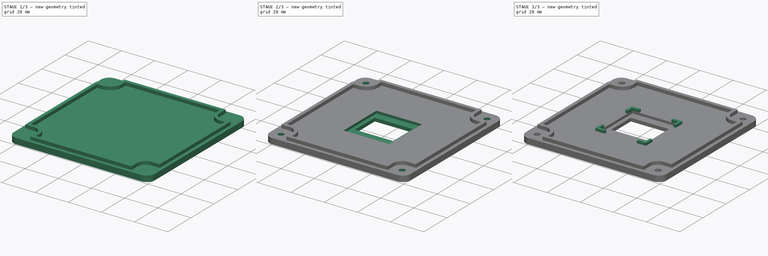
[diagram: build sequence overview — one tinted view per stage of 3, left to right]
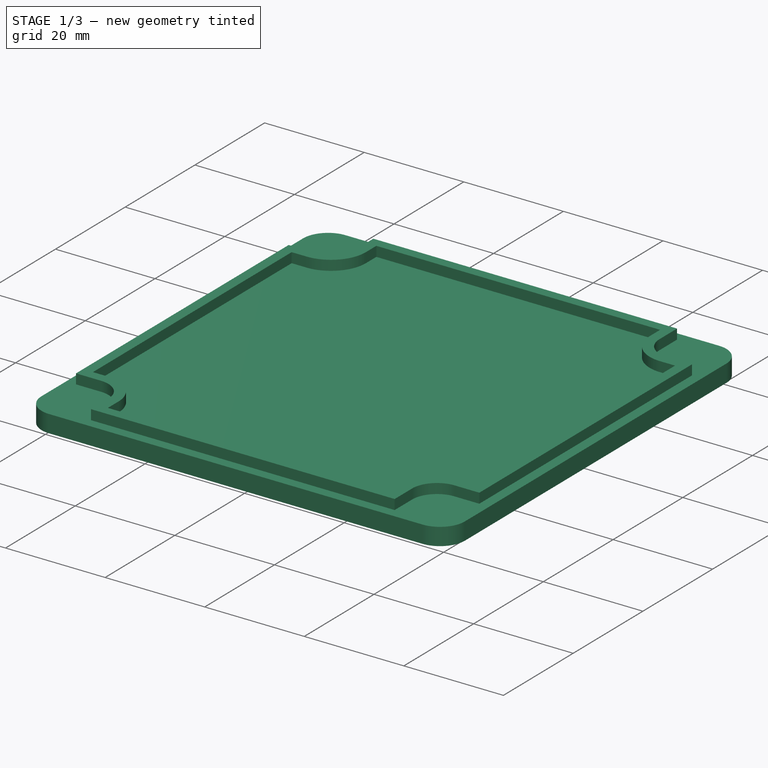
[diagram: stage 1 of 3 — iso view after this stage's code; geometry added in this stage tinted green]
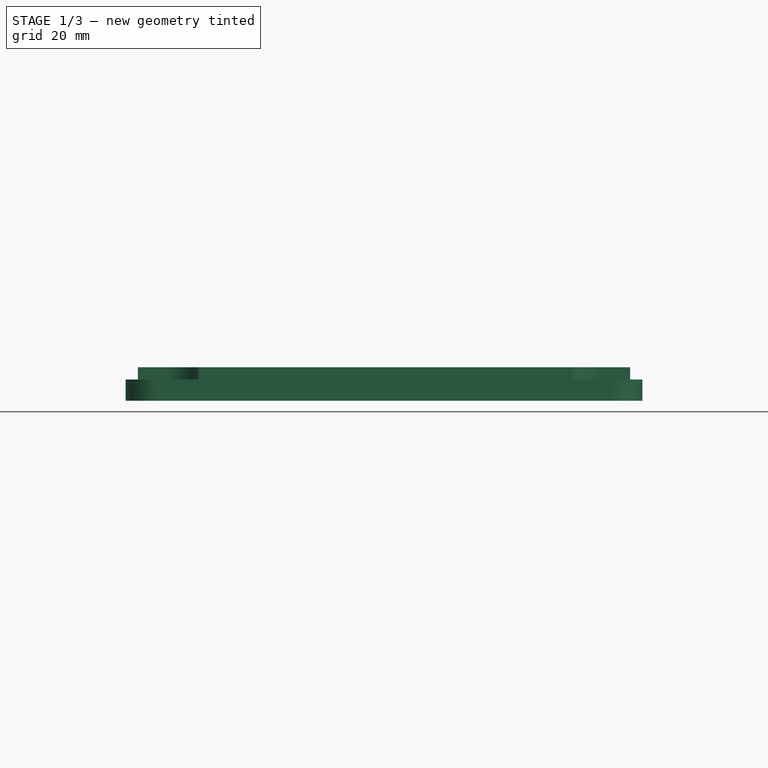
[diagram: stage 1 of 3 — front view after this stage's code; geometry added in this stage tinted green]
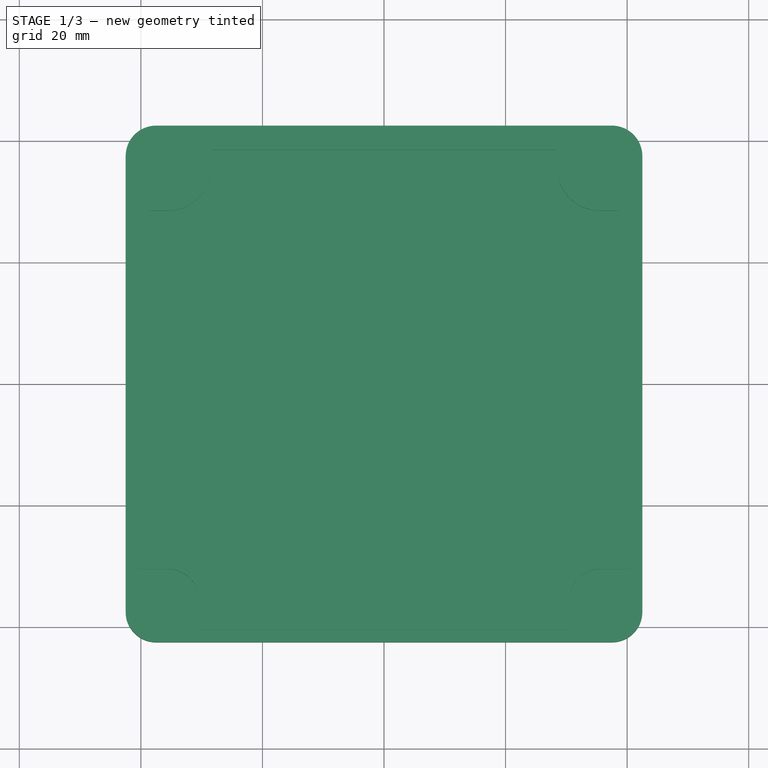
[diagram: stage 1 of 3 — top view after this stage's code; geometry added in this stage tinted green]
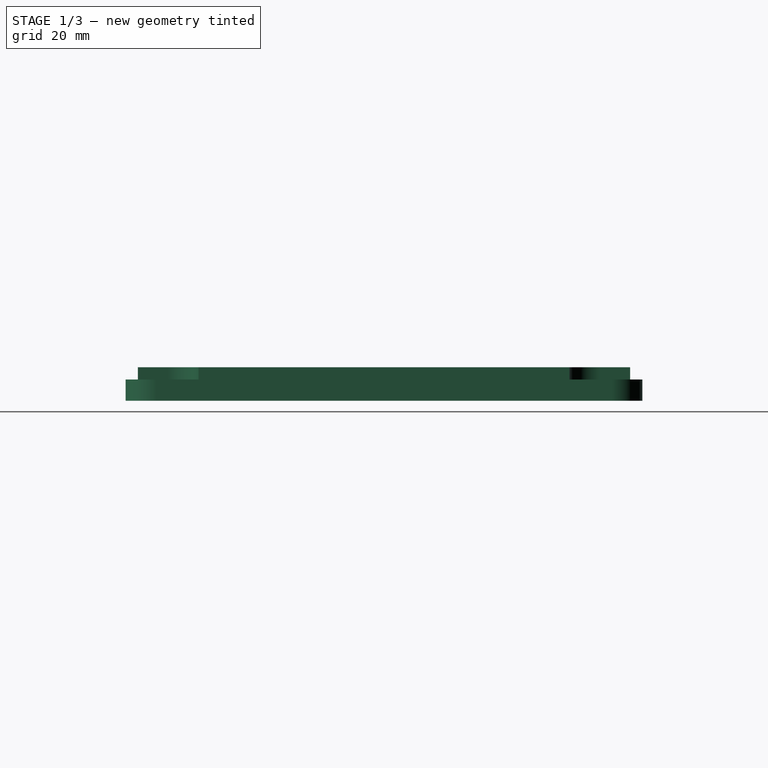
[diagram: stage 1 of 3 — right view after this stage's code; geometry added in this stage tinted green]
FCSTD DOCUMENT  (FreeCAD 0.18.4R)
Label: bodylid
License: All rights reserved
LicenseURL: http://en.wikipedia.org/wiki/All_rights_reserved
objects: Sketcher::SketchObject×7, PartDesign::Pocket×4, PartDesign::Pad×3, PartDesign::Body×1
note: 22 computed .brp shape members not serialized (recipe doc carries the construction recipe); baked Part::Feature solids carry a one-line shape summary decoded from their .brp

FEATURE [Sketcher::SketchObject] Sketch
  MapMode = 5
  Support = -> [XY_Plane]
  sketch-geometry (8):
    g0: LineSegment StartX=-37.5 StartY=42.5 StartZ=0 EndX=37.5 EndY=42.5 EndZ=0
    g1: LineSegment StartX=42.5 StartY=37.5 StartZ=0 EndX=42.5 EndY=-37.5 EndZ=0
    g2: LineSegment StartX=37.5 StartY=-42.5 StartZ=0 EndX=-37.5 EndY=-42.5 EndZ=0
    g3: LineSegment StartX=-42.5 StartY=-37.5 StartZ=0 EndX=-42.5 EndY=37.5 EndZ=0
    g4: ArcOfCircle CenterX=37.5 CenterY=-37.5 CenterZ=0 NormalX=0 NormalY=0 NormalZ=1 AngleXU=0 Radius=5 StartAngle=4.71239 EndAngle=6.28319
    g5: ArcOfCircle CenterX=-37.5 CenterY=-37.5 CenterZ=0 NormalX=0 NormalY=0 NormalZ=1 AngleXU=0 Radius=5 StartAngle=3.14159 EndAngle=4.71239
    g6: ArcOfCircle CenterX=-37.5 CenterY=37.5 CenterZ=0 NormalX=0 NormalY=0 NormalZ=1 AngleXU=0 Radius=5 StartAngle=1.5708 EndAngle=3.14159
    g7: ArcOfCircle CenterX=37.5 CenterY=37.5 CenterZ=0 NormalX=0 NormalY=0 NormalZ=1 AngleXU=0 Radius=5 StartAngle=-8e-15 EndAngle=1.5708
  constraints (19):
    c: Horizontal(g0)
    c: Horizontal(g2)
    c: Vertical(g1)
    c: Vertical(g3)
    c: Tangent(g1,g4) = 1.5708
    c: Tangent(g2,g4) = 1.5708
    c: Tangent(g3,g5) = 1.5708
    c: Tangent(g2,g5) = 1.5708
    c: Tangent(g3,g6) = 1.5708
    c: Tangent(g0,g6) = 1.5708
    c: Tangent(g0,g7) = 1.5708
    c: Tangent(g1,g7) = 1.5708
    c: Equal(g5,g4)
    c: Equal(g4,g7)
    c: Equal(g7,g6)
    c: Symmetric(g6,g4,g-1)
    c: Radius(g4) = 5
    c: DistanceX(g3,g1) = 85
    c: Equal(g0,g1)
FEATURE [PartDesign::Pad] Pad
  Length = 3.5
  Length2 = 100
  Profile = -> Sketch
  Type = 0
FEATURE [Sketcher::SketchObject] Sketch001
  ExternalGeometry = -> [Pad]
  MapMode = 5
  Placement = pos=(0,0,3.5) rot=(0,0,1;0rad)
  Support = -> [Pad]
  sketch-geometry (32):
    g0: LineSegment StartX=-30.5 StartY=40.5 StartZ=0 EndX=30.5 EndY=40.5 EndZ=0
    g1: LineSegment StartX=30.5 StartY=40.5 StartZ=0 EndX=30.5 EndY=35.5 EndZ=0
    g2: LineSegment StartX=35.5 StartY=30.5 StartZ=0 EndX=40.5 EndY=30.5 EndZ=0
    g3: LineSegment StartX=40.5 StartY=30.5 StartZ=0 EndX=40.5 EndY=-30.5 EndZ=0
    g4: LineSegment StartX=40.5 StartY=-30.5 StartZ=0 EndX=35.5 EndY=-30.5 EndZ=0
    g5: LineSegment StartX=30.5 StartY=-35.5 StartZ=0 EndX=30.5 EndY=-40.5 EndZ=0
    g6: LineSegment StartX=30.5 StartY=-40.5 StartZ=0 EndX=-30.5 EndY=-40.5 EndZ=0
    g7: LineSegment StartX=-30.5 StartY=-40.5 StartZ=0 EndX=-30.5 EndY=-35.5 EndZ=0
    g8: LineSegment StartX=-35.5 StartY=-30.5 StartZ=0 EndX=-40.5 EndY=-30.5 EndZ=0
    g9: LineSegment StartX=-40.5 StartY=-30.5 StartZ=0 EndX=-40.5 EndY=30.5 EndZ=0
    g10: LineSegment StartX=-40.5 StartY=30.5 StartZ=0 EndX=-35.5 EndY=30.5 EndZ=0
    g11: LineSegment StartX=-30.5 StartY=35.5 StartZ=0 EndX=-30.5 EndY=40.5 EndZ=0
    g12: ArcOfCircle CenterX=35.5 CenterY=-35.5 CenterZ=0 NormalX=0 NormalY=0 NormalZ=1 AngleXU=0 Radius=5 StartAngle=1.5708 EndAngle=3.14159
    g13: ArcOfCircle CenterX=35.5 CenterY=35.5 CenterZ=0 NormalX=0 NormalY=0 NormalZ=1 AngleXU=0 Radius=5 StartAngle=3.14159 EndAngle=4.71239
    g14: ArcOfCircle CenterX=-35.5 CenterY=35.5 CenterZ=0 NormalX=0 NormalY=0 NormalZ=1 AngleXU=0 Radius=5 StartAngle=4.71239 EndAngle=6.28319
    g15: ArcOfCircle CenterX=-35.5 CenterY=-35.5 CenterZ=0 NormalX=0 NormalY=0 NormalZ=1 AngleXU=0 Radius=5 StartAngle=0 EndAngle=1.5708
    g16: LineSegment StartX=-28.5 StartY=38.5 StartZ=0 EndX=28.5 EndY=38.5 EndZ=0
    g17: LineSegment StartX=28.5 StartY=38.5 StartZ=0 EndX=28.5 EndY=35.5 EndZ=0
    g18: LineSegment StartX=35.5 StartY=28.5 StartZ=0 EndX=38.5 EndY=28.5 EndZ=0
    g19: LineSegment StartX=38.5 StartY=28.5 StartZ=0 EndX=38.5 EndY=-28.5 EndZ=0
    g20: LineSegment StartX=38.5 StartY=-28.5 StartZ=0 EndX=35.5 EndY=-28.5 EndZ=0
    g21: LineSegment StartX=28.5 StartY=-35.5 StartZ=0 EndX=28.5 EndY=-38.5 EndZ=0
    g22: LineSegment StartX=28.5 StartY=-38.5 StartZ=0 EndX=-28.5 EndY=-38.5 EndZ=0
    g23: LineSegment StartX=-28.5 StartY=-38.5 StartZ=0 EndX=-28.5 EndY=-35.5 EndZ=0
    g24: LineSegment StartX=-35.5 StartY=-28.5 StartZ=0 EndX=-38.5 EndY=-28.5 EndZ=0
    g25: LineSegment StartX=-38.5 StartY=-28.5 StartZ=0 EndX=-38.5 EndY=28.5 EndZ=0
    g26: LineSegment StartX=-38.5 StartY=28.5 StartZ=0 EndX=-35.5 EndY=28.5 EndZ=0
    g27: LineSegment StartX=-28.5 StartY=35.5 StartZ=0 EndX=-28.5 EndY=38.5 EndZ=0
    g28: ArcOfCircle CenterX=-35.5 CenterY=35.5 CenterZ=0 NormalX=0 NormalY=0 NormalZ=1 AngleXU=0 Radius=7 StartAngle=4.71239 EndAngle=6.28319
    g29: ArcOfCircle CenterX=35.5 CenterY=35.5 CenterZ=0 NormalX=0 NormalY=0 NormalZ=1 AngleXU=0 Radius=7 StartAngle=3.14159 EndAngle=4.71239
    g30: ArcOfCircle CenterX=35.5 CenterY=-35.5 CenterZ=0 NormalX=0 NormalY=0 NormalZ=1 AngleXU=0 Radius=7 StartAngle=1.5708 EndAngle=3.14159
    g31: ArcOfCircle CenterX=-35.5 CenterY=-35.5 CenterZ=0 NormalX=0 NormalY=0 NormalZ=1 AngleXU=0 Radius=7 StartAngle=3e-16 EndAngle=1.5708
  constraints (88):
    c: Horizontal(g0)
    c: Coincident(g0,g1)
    c: Coincident(g2,g3)
    c: Vertical(g3)
    c: Coincident(g3,g4)
    c: Coincident(g5,g6)
    c: Coincident(g6,g7)
    c: Vertical(g7)
    c: Coincident(g8,g9)
    c: Vertical(g9)
    c: Coincident(g9,g10)
    c: Coincident(g11,g0)
    c: Vertical(g11)
    c: Equal(g0,g9)
    c: Equal(g9,g6)
    c: Equal(g6,g3)
    c: Tangent(g5,g12) = -1.5708
    c: Tangent(g4,g12) = -1.5708
    c: Tangent(g2,g13) = -1.5708
    c: Tangent(g1,g13) = -1.5708
    c: Tangent(g10,g14) = -1.5708
    c: Tangent(g11,g14) = -1.5708
    c: Horizontal(g10)
    c: Vertical(g1)
    c: Horizontal(g2)
    c: Tangent(g7,g15) = -1.5708
    c: Tangent(g8,g15) = -1.5708
    c: Horizontal(g8)
    c: Vertical(g5)
    c: Horizontal(g4)
    c: Horizontal(g6)
    c: Equal(g8,g7)
    c: Equal(g7,g5)
    c: Equal(g5,g4)
    c: Equal(g4,g2)
    c: Equal(g2,g1)
    c: Equal(g1,g11)
    c: Equal(g11,g10)
    c: Radius(g14) = 5
    c: DistanceY(g0,g-3) = 2
    c: Equal(g14,g15)
    c: DistanceX(g-4,g9) = 2
    c: DistanceX(g2,g-5) = 2
    c: DistanceX(g2,g2) = 5
    c: Horizontal(g16)
    c: Coincident(g16,g17)
    c: Coincident(g18,g19)
    c: Vertical(g19)
    c: Coincident(g19,g20)
    c: Coincident(g21,g22)
    c: Coincident(g22,g23)
    c: Coincident(g24,g25)
    c: Coincident(g25,g26)
    c: Coincident(g27,g16)
    c: Tangent(g26,g28) = -1.5708
    c: Tangent(g27,g28) = -1.5708
    c: Tangent(g17,g29) = -1.5708
    c: Tangent(g18,g29) = -1.5708
    c: Tangent(g20,g30) = -1.5708
    c: Tangent(g21,g30) = -1.5708
    c: Tangent(g24,g31) = -1.5708
    c: Tangent(g23,g31) = -1.5708
    c: Vertical(g27)
    c: Horizontal(g26)
    c: Vertical(g25)
    c: Horizontal(g22)
    c: Vertical(g23)
    c: Horizontal(g24)
    c: Horizontal(g20)
    c: Vertical(g21)
    c: Horizontal(g18)
    c: Vertical(g17)
    c: Equal(g29,g30)
    c: Equal(g30,g31)
    c: Equal(g31,g28)
    c: DistanceY(g16,g0) = 2
    c: DistanceX(g18,g2) = 2
    c: Vertical(g18,g2)
    c: Horizontal(g17,g1)
    c: DistanceX(g17,g1) = 2
    c: Equal(g27,g23)
    c: Equal(g23,g20)
    c: Equal(g20,g18)
    c: Equal(g26,g24)
    c: Equal(g24,g21)
    c: Equal(g21,g20)
    c: DistanceX(g9,g25) = 2
    c: DistanceY(g4,g20) = 2
FEATURE [PartDesign::Pad] Pad001
  BaseFeature = -> Pad
  Length = 2
  Length2 = 100
  Profile = -> Sketch001
  Type = 0
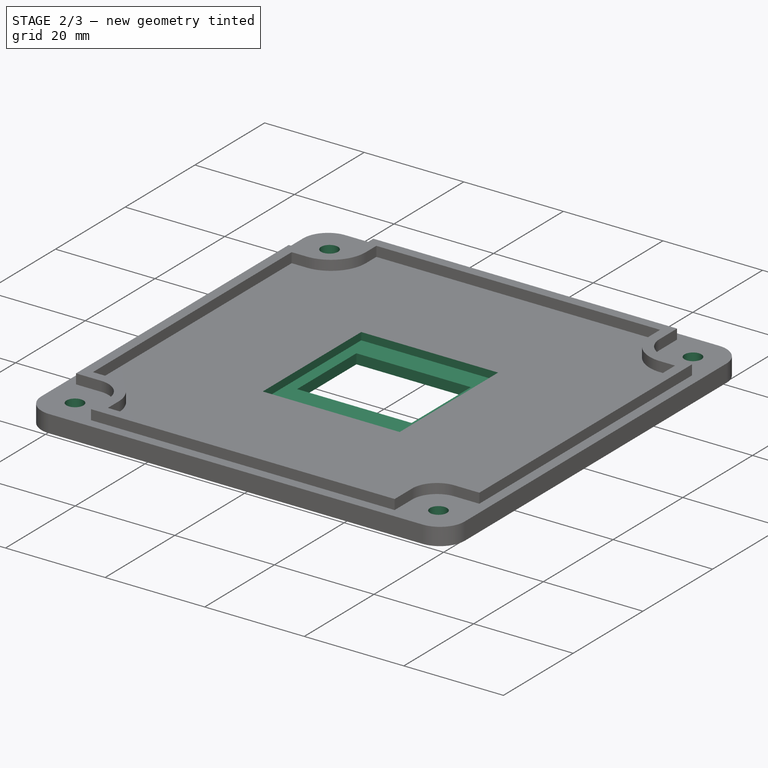
[diagram: stage 2 of 3 — iso view after this stage's code; geometry added in this stage tinted green]
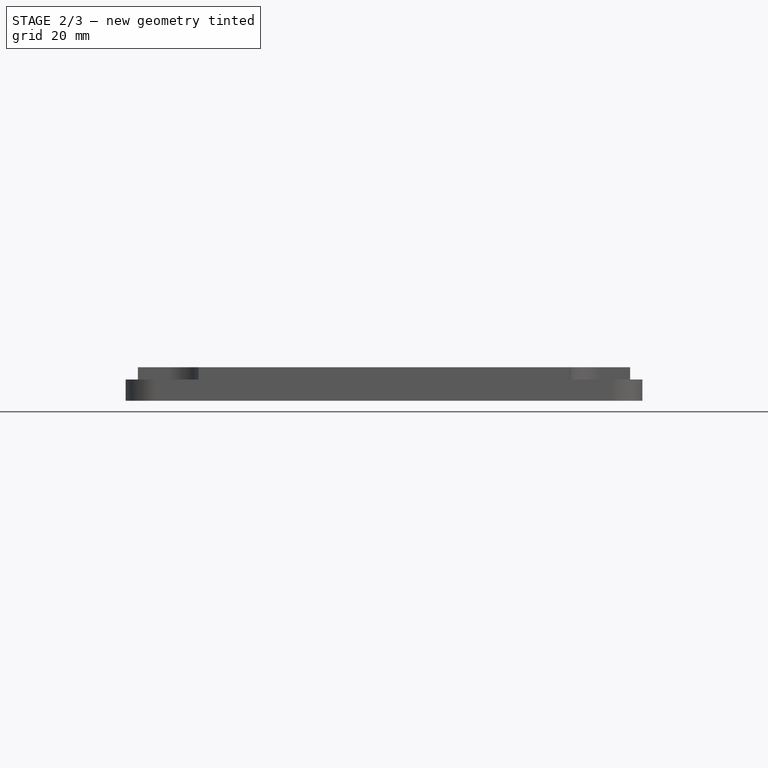
[diagram: stage 2 of 3 — front view after this stage's code; geometry added in this stage tinted green]
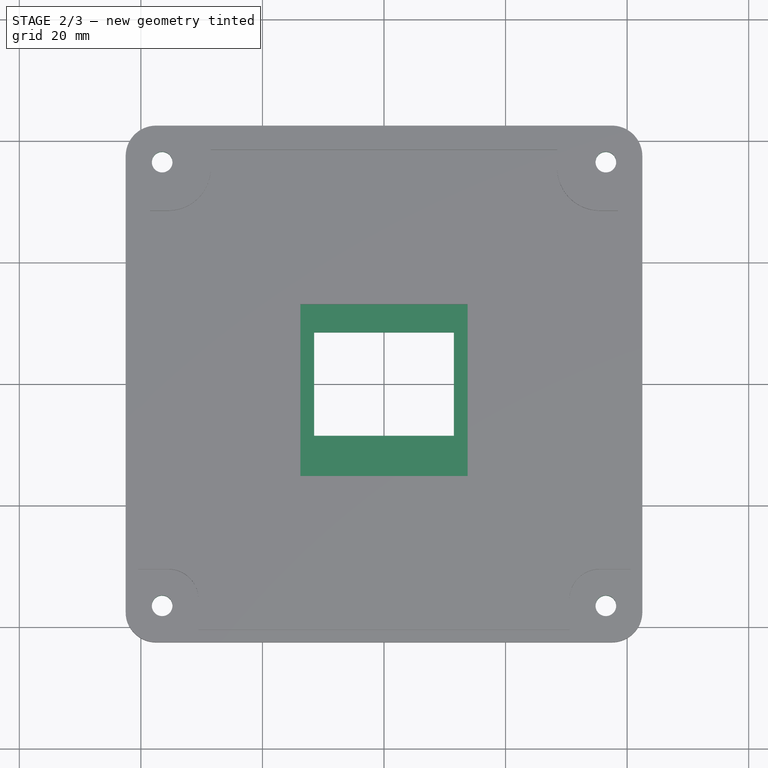
[diagram: stage 2 of 3 — top view after this stage's code; geometry added in this stage tinted green]
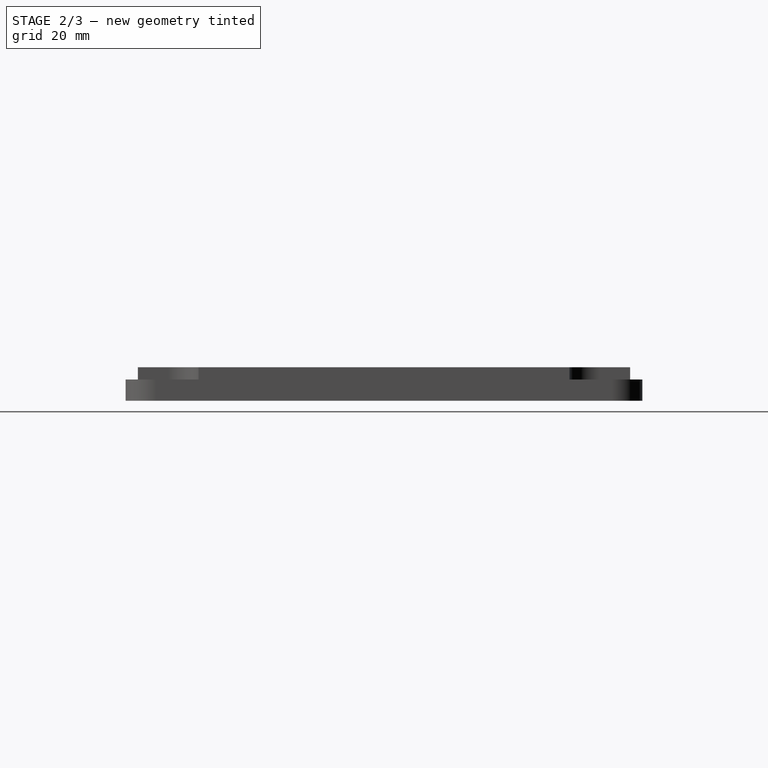
[diagram: stage 2 of 3 — right view after this stage's code; geometry added in this stage tinted green]
FEATURE [Sketcher::SketchObject] Sketch002
  ExternalGeometry = -> [Pad001]
  MapMode = 5
  Placement = pos=(0,0,3.5) rot=(0,0,1;0rad)
  Support = -> [Pad001]
  sketch-geometry (4):
    g0: Circle CenterX=-36.5 CenterY=36.5 CenterZ=0 NormalX=0 NormalY=0 NormalZ=1 AngleXU=0 Radius=1.7
    g1: Circle CenterX=36.5 CenterY=36.5 CenterZ=0 NormalX=0 NormalY=0 NormalZ=1 AngleXU=0 Radius=1.7
    g2: Circle CenterX=-36.5 CenterY=-36.5 CenterZ=0 NormalX=0 NormalY=0 NormalZ=1 AngleXU=0 Radius=1.7
    g3: Circle CenterX=36.5 CenterY=-36.5 CenterZ=0 NormalX=0 NormalY=0 NormalZ=1 AngleXU=0 Radius=1.7
  constraints (9):
    c: Equal(g3,g2)
    c: Equal(g2,g1)
    c: Equal(g1,g0)
    c: Vertical(g2,g0)
    c: Horizontal(g3,g2)
    c: Symmetric(g1,g3,g-1)
    c: Symmetric(g0,g1,g-2)
    c: Symmetric(g-4,g-3,g0)
    c: Radius(g0) = 1.7
FEATURE [PartDesign::Pocket] Pocket
  BaseFeature = -> Pad001
  Length = 5
  Length2 = 100
  Profile = -> Sketch002
  Type = 0
FEATURE [Sketcher::SketchObject] Sketch003
  MapMode = 5
  Placement = pos=(0,0,3.5) rot=(0,0,1;0rad)
  Support = -> [Pocket]
  sketch-geometry (4):
    g0: LineSegment StartX=11.5 StartY=8.5 StartZ=0 EndX=-11.5 EndY=8.5 EndZ=0
    g1: LineSegment StartX=-11.5 StartY=8.5 StartZ=0 EndX=-11.5 EndY=-8.5 EndZ=0
    g2: LineSegment StartX=-11.5 StartY=-8.5 StartZ=0 EndX=11.5 EndY=-8.5 EndZ=0
    g3: LineSegment StartX=11.5 StartY=-8.5 StartZ=0 EndX=11.5 EndY=8.5 EndZ=0
  constraints (11):
    c: Coincident(g0,g1)
    c: Coincident(g1,g2)
    c: Coincident(g2,g3)
    c: Coincident(g3,g0)
    c: Horizontal(g0)
    c: Horizontal(g2)
    c: Vertical(g1)
    c: Vertical(g3)
    c: Symmetric(g0,g1,g-1)
    c: DistanceX(g0,g0) = 23
    c: DistanceY(g3,g3) = 17
FEATURE [PartDesign::Pocket] Pocket001
  BaseFeature = -> Pocket
  Length = 5
  Length2 = 100
  Profile = -> Sketch003
  Type = 0
FEATURE [Sketcher::SketchObject] Sketch004
  ExternalGeometry = -> [Pocket001]
  MapMode = 5
  Placement = pos=(0,0,3.5) rot=(0,0,1;0rad)
  Support = -> [Pocket001]
  sketch-geometry (4):
    g0: LineSegment StartX=-13.75 StartY=13.1 StartZ=0 EndX=13.75 EndY=13.1 EndZ=0
    g1: LineSegment StartX=13.75 StartY=13.1 StartZ=0 EndX=13.75 EndY=-15.1448 EndZ=0
    g2: LineSegment StartX=13.75 StartY=-15.1448 StartZ=0 EndX=-13.75 EndY=-15.1448 EndZ=0
    g3: LineSegment StartX=-13.75 StartY=-15.1448 StartZ=0 EndX=-13.75 EndY=13.1 EndZ=0
  constraints (11):
    c: Coincident(g0,g1)
    c: Coincident(g1,g2)
    c: Coincident(g2,g3)
    c: Coincident(g3,g0)
    c: Horizontal(g2)
    c: Vertical(g1)
    c: Vertical(g3)
    c: DistanceX(g0,g0) = 27.5
    c: Symmetric(g0,g0,g-2)
    c: DistanceY(g-3,g0) = 4.6
    c: DistanceY(g1,g1) = 28.2448
FEATURE [PartDesign::Pocket] Pocket002
  BaseFeature = -> Pocket001
  Length = 1.5
  Length2 = 100
  Profile = -> Sketch004
  Type = 0
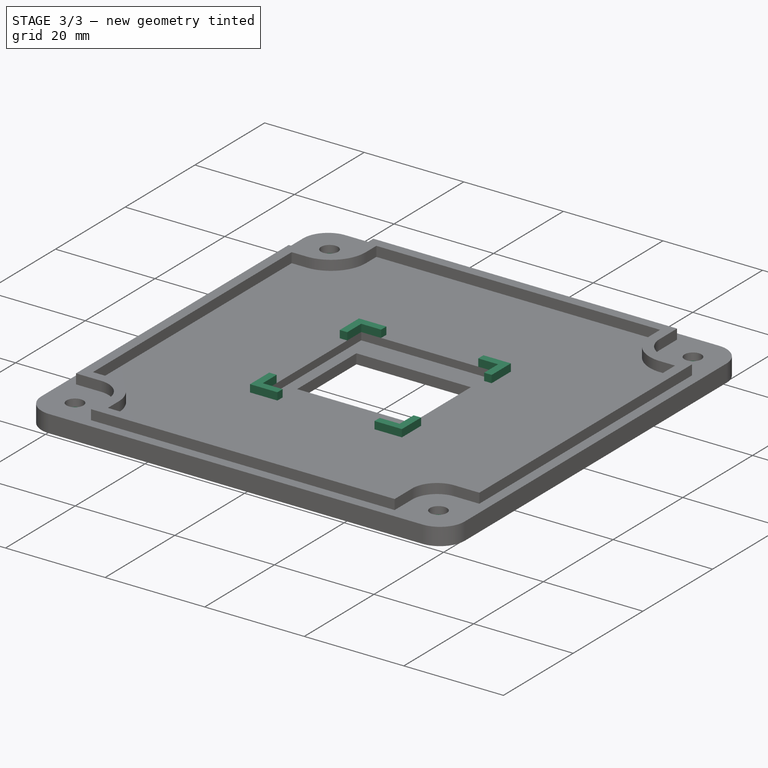
[diagram: stage 3 of 3 — iso view after this stage's code; geometry added in this stage tinted green]
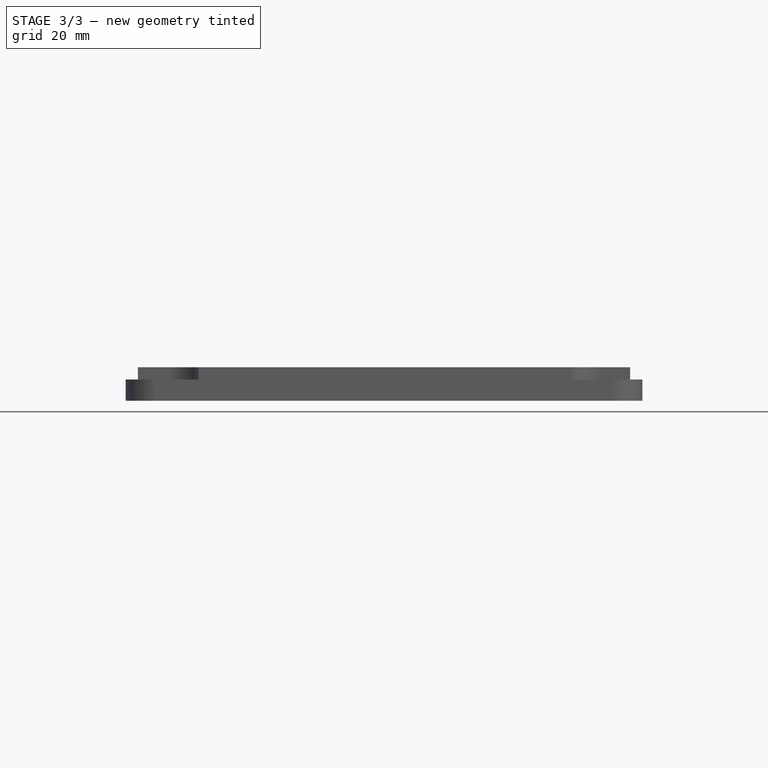
[diagram: stage 3 of 3 — front view after this stage's code; geometry added in this stage tinted green]
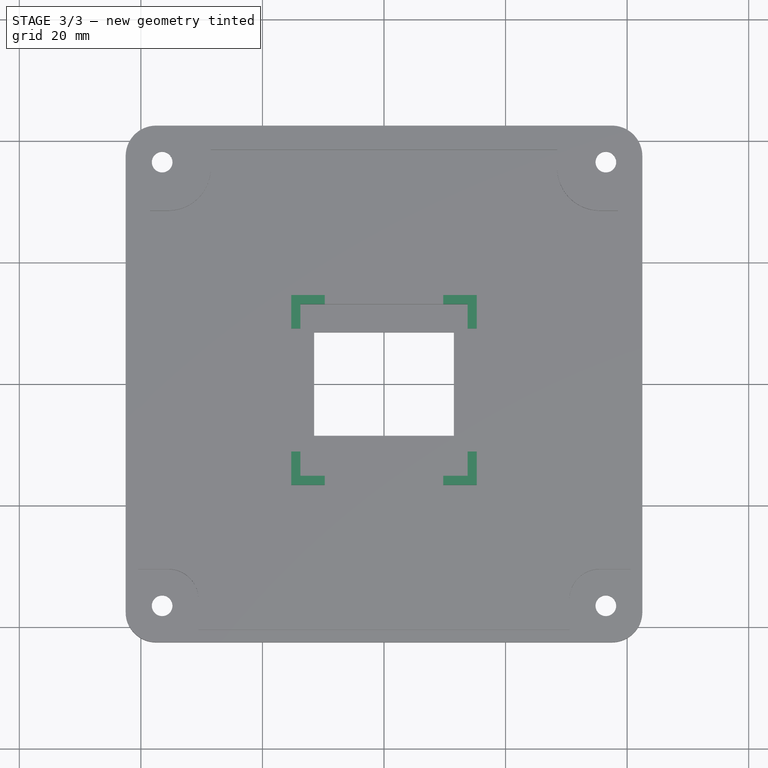
[diagram: stage 3 of 3 — top view after this stage's code; geometry added in this stage tinted green]
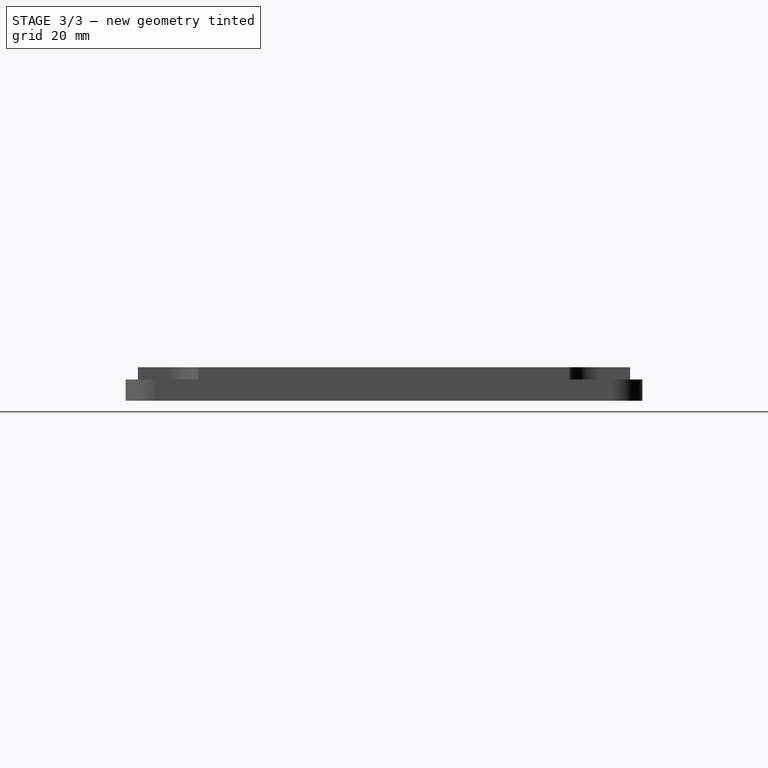
[diagram: stage 3 of 3 — right view after this stage's code; geometry added in this stage tinted green]
FEATURE [Sketcher::SketchObject] Sketch005
  ExternalGeometry = -> [Pocket002]
  MapMode = 5
  Placement = pos=(0,0,3.5) rot=(0,0,1;0rad)
  Support = -> [Pocket002]
  sketch-geometry (24):
    g0: LineSegment StartX=-15.25 StartY=14.6 StartZ=0 EndX=-15.25 EndY=9.1 EndZ=0
    g1: LineSegment StartX=-15.25 StartY=9.1 StartZ=0 EndX=-13.75 EndY=9.1 EndZ=0
    g2: LineSegment StartX=-13.75 StartY=9.1 StartZ=0 EndX=-13.75 EndY=13.1 EndZ=0
    g3: LineSegment StartX=-13.75 StartY=13.1 StartZ=0 EndX=-9.75 EndY=13.1 EndZ=0
    g4: LineSegment StartX=-9.75 StartY=13.1 StartZ=0 EndX=-9.75 EndY=14.6 EndZ=0
    g5: LineSegment StartX=-9.75 StartY=14.6 StartZ=0 EndX=-15.25 EndY=14.6 EndZ=0
    g6: LineSegment StartX=9.75 StartY=13.1 StartZ=0 EndX=13.75 EndY=13.1 EndZ=0
    g7: LineSegment StartX=13.75 StartY=13.1 StartZ=0 EndX=13.75 EndY=9.1 EndZ=0
    g8: LineSegment StartX=13.75 StartY=9.1 StartZ=0 EndX=15.25 EndY=9.1 EndZ=0
    g9: LineSegment StartX=15.25 StartY=9.1 StartZ=0 EndX=15.25 EndY=14.6 EndZ=0
    g10: LineSegment StartX=15.25 StartY=14.6 StartZ=0 EndX=9.75 EndY=14.6 EndZ=0
    g11: LineSegment StartX=9.75 StartY=14.6 StartZ=0 EndX=9.75 EndY=13.1 EndZ=0
    g12: LineSegment StartX=9.75 StartY=-15.1448 StartZ=0 EndX=13.75 EndY=-15.1448 EndZ=0
    g13: LineSegment StartX=13.75 StartY=-15.1448 StartZ=0 EndX=13.75 EndY=-11.1448 EndZ=0
    g14: LineSegment StartX=13.75 StartY=-11.1448 StartZ=0 EndX=15.25 EndY=-11.1448 EndZ=0
    g15: LineSegment StartX=15.25 StartY=-11.1448 StartZ=0 EndX=15.25 EndY=-16.6448 EndZ=0
    g16: LineSegment StartX=15.25 StartY=-16.6448 StartZ=0 EndX=9.75 EndY=-16.6448 EndZ=0
    g17: LineSegment StartX=9.75 StartY=-16.6448 StartZ=0 EndX=9.75 EndY=-15.1448 EndZ=0
    g18: LineSegment StartX=-13.75 StartY=-11.1448 StartZ=0 EndX=-13.75 EndY=-15.1448 EndZ=0
    g19: LineSegment StartX=-13.75 StartY=-15.1448 StartZ=0 EndX=-9.75 EndY=-15.1448 EndZ=0
    g20: LineSegment StartX=-9.75 StartY=-15.1448 StartZ=0 EndX=-9.75 EndY=-16.6448 EndZ=0
    g21: LineSegment StartX=-9.75 StartY=-16.6448 StartZ=0 EndX=-15.25 EndY=-16.6448 EndZ=0
    g22: LineSegment StartX=-15.25 StartY=-16.6448 StartZ=0 EndX=-15.25 EndY=-11.1448 EndZ=0
    g23: LineSegment StartX=-15.25 StartY=-11.1448 StartZ=0 EndX=-13.75 EndY=-11.1448 EndZ=0
  constraints (68):
    c: Coincident(g0,g1)
    c: Coincident(g1,g2)
    c: Vertical(g2)
    c: Coincident(g2,g3)
    c: Coincident(g3,g4)
    c: Coincident(g4,g5)
    c: Coincident(g5,g0)
    c: Coincident(g6,g7)
    c: Coincident(g7,g8)
    c: Coincident(g8,g9)
    c: Coincident(g9,g10)
    c: Coincident(g10,g11)
    c: Coincident(g11,g6)
    c: Horizontal(g12)
    c: Coincident(g12,g13)
    c: Coincident(g13,g14)
    c: Coincident(g14,g15)
    c: Coincident(g15,g16)
    c: Coincident(g16,g17)
    c: Coincident(g17,g12)
    c: Vertical(g17)
    c: Coincident(g18,g19)
    c: Coincident(g19,g20)
    c: Coincident(g20,g21)
    c: Coincident(g21,g22)
    c: Coincident(g22,g23)
    c: Coincident(g23,g18)
    c: Equal(g5,g0)
    c: Equal(g0,g22)
    c: Equal(g22,g21)
    c: Equal(g21,g16)
    c: Equal(g16,g15)
    c: Equal(g15,g9)
    c: Equal(g9,g10)
    c: Horizontal(g8)
    c: Horizontal(g10)
    c: Horizontal(g6)
    c: Horizontal(g3)
    c: Equal(g3,g2)
    c: Equal(g2,g18)
    c: Equal(g18,g19)
    c: Equal(g19,g12)
    c: Equal(g12,g13)
    c: Equal(g13,g7)
    c: Equal(g7,g6)
    c: Horizontal(g1)
    c: Vertical(g0)
    c: Horizontal(g5)
    c: Vertical(g4)
    c: Vertical(g11)
    c: Vertical(g7)
    c: Vertical(g13)
    c: Vertical(g15)
    c: Horizontal(g16)
    c: Horizontal(g14)
    c: Horizontal(g23)
    c: Vertical(g20)
    c: Horizontal(g19)
    c: Horizontal(g21)
    c: Vertical(g22)
    c: Vertical(g18)
    c: Vertical(g9)
    c: Symmetric(g10,g4,g-2)
    c: DistanceX(g8,g8) = 1.5
    c: DistanceX(g12,g12) = 4
    c: Symmetric(g20,g16,g-2)
    c: Coincident(g-4,g6)
    c: Coincident(g12,g-3)
FEATURE [PartDesign::Pad] Pad002
  BaseFeature = -> Pocket002
  Length = 1.5
  Length2 = 100
  Profile = -> Sketch005
  Type = 0
FEATURE [Sketcher::SketchObject] Sketch006
  ExternalGeometry = -> [Pad002]
  MapMode = 5
  Placement = pos=(0,0,0) rot=(1,0,0;3.14159rad)
  Support = -> [Pad002]
  sketch-geometry (4):
    g0: Circle CenterX=-36.5 CenterY=36.5 CenterZ=0 NormalX=0 NormalY=0 NormalZ=1 AngleXU=0 Radius=2.5
    g1: Circle CenterX=36.5 CenterY=36.5 CenterZ=0 NormalX=0 NormalY=0 NormalZ=1 AngleXU=0 Radius=2.5
    g2: Circle CenterX=36.5 CenterY=-36.5 CenterZ=0 NormalX=0 NormalY=0 NormalZ=1 AngleXU=0 Radius=2.5
    g3: Circle CenterX=-36.5 CenterY=-36.5 CenterZ=0 NormalX=0 NormalY=0 NormalZ=1 AngleXU=0 Radius=2.5
  constraints (8):
    c: Coincident(g0,g-3)
    c: Coincident(g1,g-6)
    c: Coincident(g2,g-5)
    c: Coincident(g3,g-4)
    c: Equal(g1,g0)
    c: Equal(g0,g2)
    c: Equal(g2,g3)
    c: Radius(g2) = 2.5
FEATURE [PartDesign::Pocket] Pocket003
  BaseFeature = -> Pad002
  Length = 2
  Length2 = 100
  Profile = -> Sketch006
  Type = 0
FEATURE [PartDesign::Body] Body
  Group = -> [Sketch,Pad,Sketch001,Pad001,Sketch002,Pocket,Sketch003,Pocket001,Sketch004,Pocket002,Sketch005,Pad002,Sketch006,Pocket003]
  Origin = -> Origin
  Tip = -> Pocket003
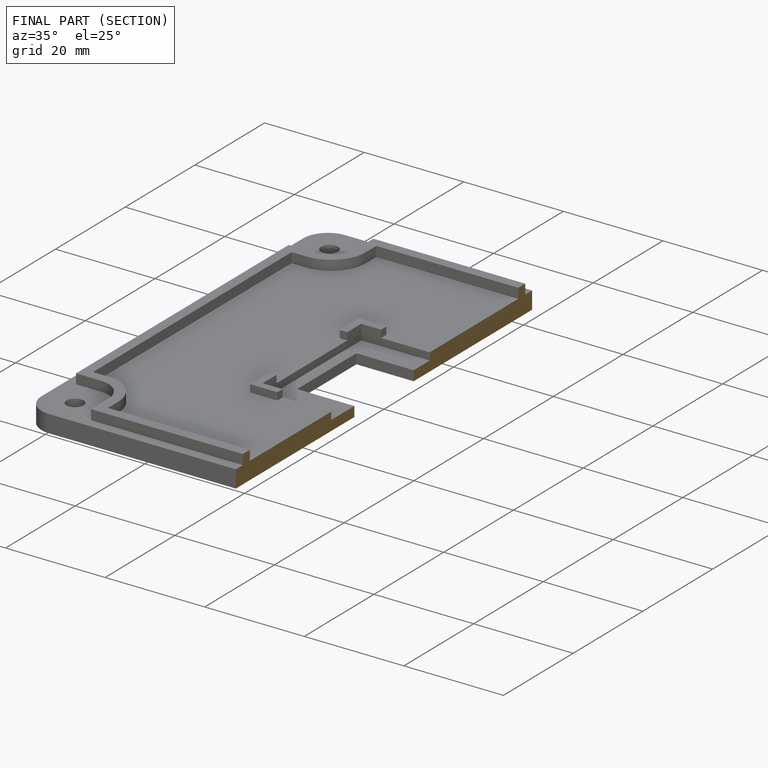
[diagram: finished part — half-section view (interior)]
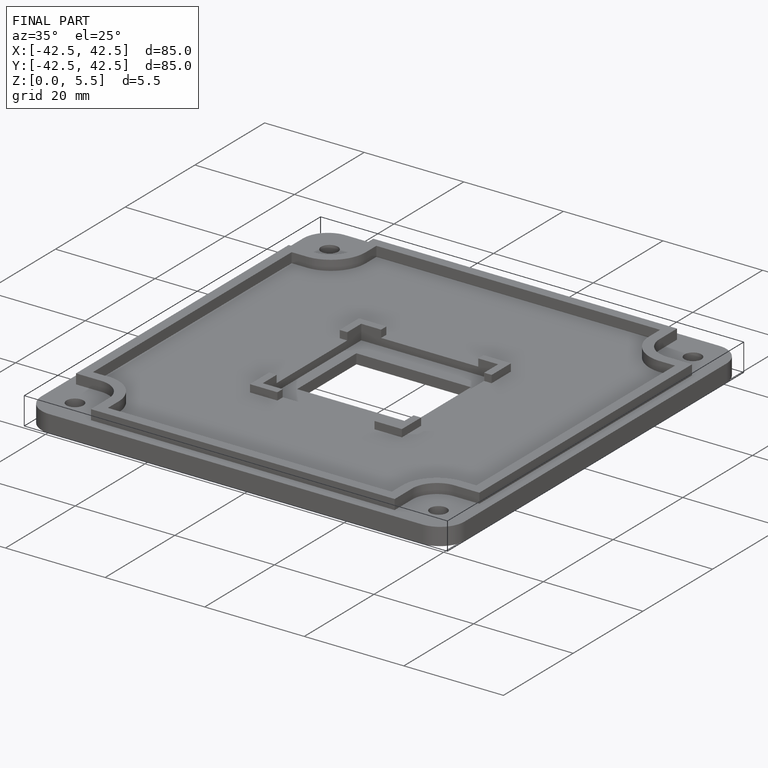
[diagram: finished part — iso view with bounding-box wireframe]
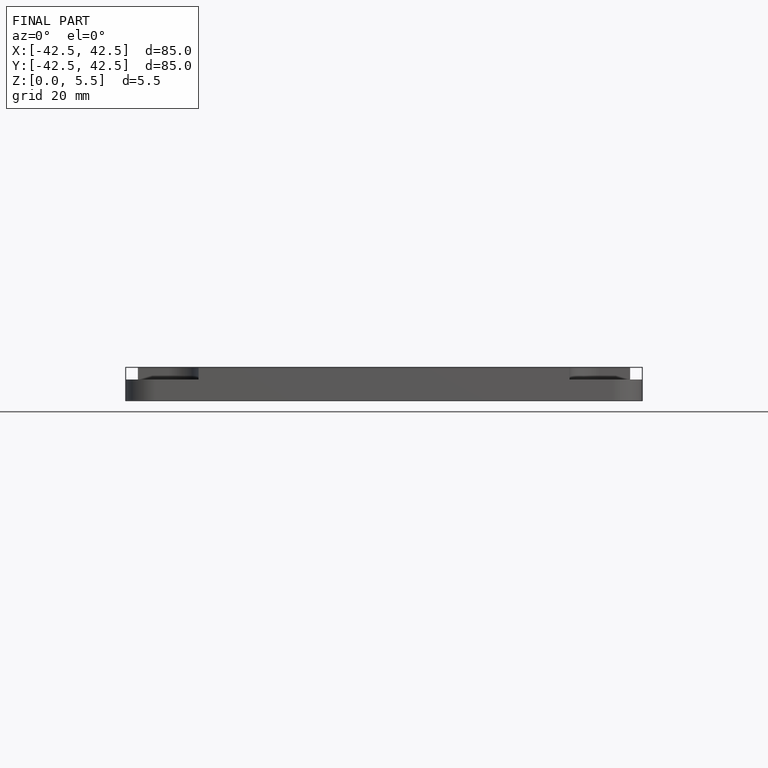
[diagram: finished part — front view with bounding-box wireframe]
